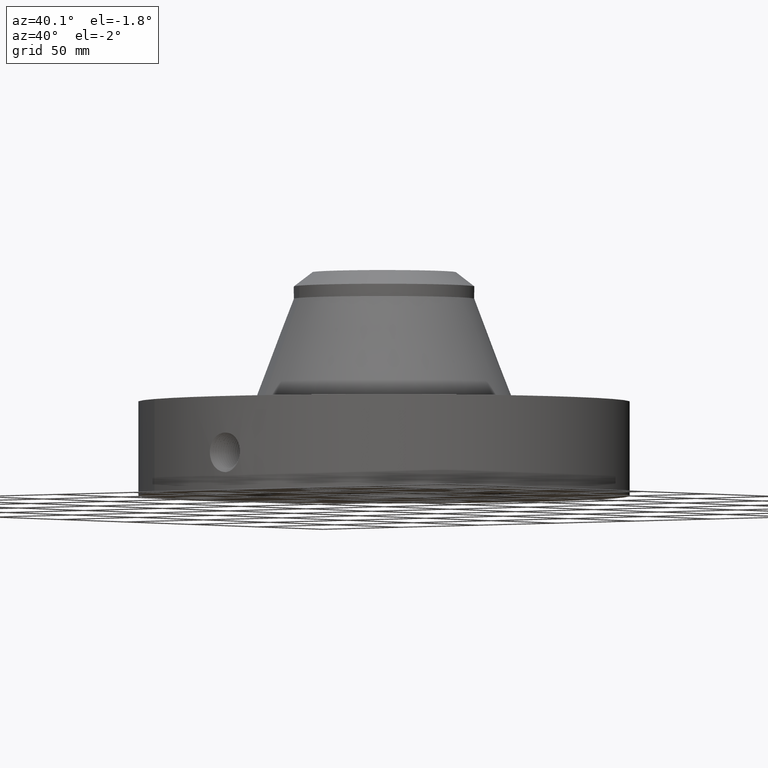
[diagram: clean part render]
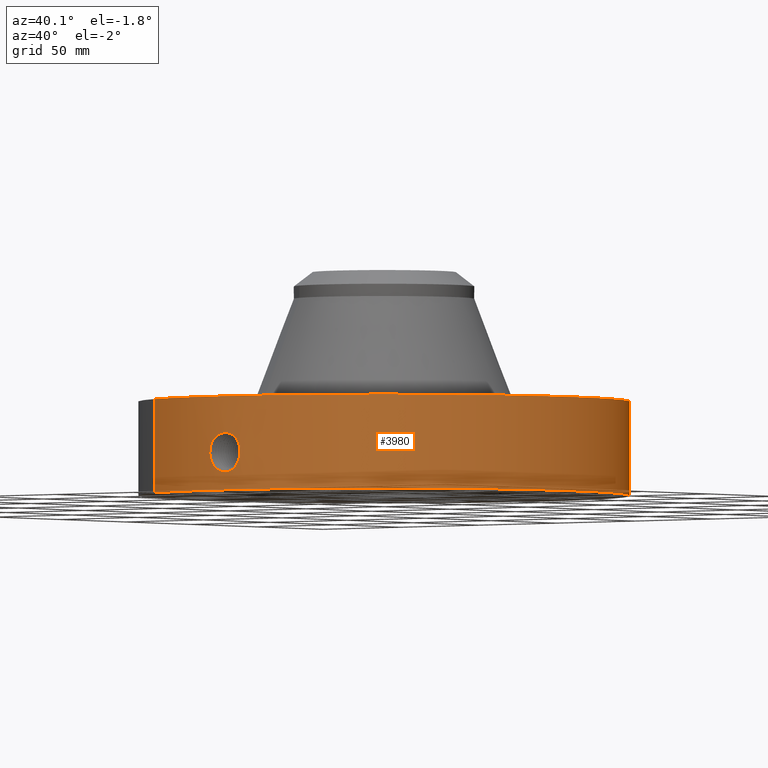
[diagram: same view with one face highlighted and labeled with its STEP entity id]
A machine part, auxiliary view. The second image highlights one B-rep face of the part: STEP entity #3980.
In plain terms, the highlighted cylindrical surface (partial cylindrical patch) has radius 120.65 mm, axis along (0, 0, -1).
Its self-contained STEP definition (entity closure, byte-faithful):
#2918=AXIS2_PLACEMENT_3D('Circle Axis2P3D',#2916,#2917,$) ;
#3735=AXIS2_PLACEMENT_3D('Cylinder Axis2P3D',#3732,#3733,#3734) ;
#3868=AXIS2_PLACEMENT_3D('Circle Axis2P3D',#3866,#3867,$) ;
#2916=CARTESIAN_POINT('Axis2P3D Location',(0.,0.,1.81200000001)) ;
#2920=CARTESIAN_POINT('Vertex',(2.27727130838,4.168517169,1.81200000001)) ;
#2922=CARTESIAN_POINT('Vertex',(-2.27727130838,-4.168517169,1.81200000001)) ;
#3732=CARTESIAN_POINT('Axis2P3D Location',(0.,0.,2.15600000001)) ;
#3741=CARTESIAN_POINT('Vertex',(-2.27727130838,-4.168517169,5.59482469102E-016)) ;
#3743=CARTESIAN_POINT('Vertex',(2.27727130838,4.168517169,5.59482469102E-016)) ;
#3746=CARTESIAN_POINT('Line Origine',(-2.27727130838,-4.168517169,0.906000000004)) ;
#3751=CARTESIAN_POINT('Line Origine',(2.27727130838,4.168517169,0.906000000004)) ;
#3866=CARTESIAN_POINT('Axis2P3D Location',(0.,0.,2.79741234551E-016)) ;
#3878=CARTESIAN_POINT('Control Point',(0.0664453390483,-4.74953524222,1.09781453715)) ;
#3879=CARTESIAN_POINT('Control Point',(0.0447980657734,-4.74983808457,1.10195965719)) ;
#3880=CARTESIAN_POINT('Control Point',(0.0227599615776,-4.7499966182,1.10407372157)) ;
#3881=CARTESIAN_POINT('Control Point',(0.000717080910251,-4.74999994589,1.10411849685)) ;
#3882=CARTESIAN_POINT('Vertex',(0.0664194613202,-4.74953588249,1.09781980318)) ;
#3884=CARTESIAN_POINT('Vertex',(0.000716858948004,-4.74999994592,1.10411850704)) ;
#3888=CARTESIAN_POINT('Control Point',(0.0664193280418,-4.74953560604,1.09781913838)) ;
#3889=CARTESIAN_POINT('Control Point',(0.102754082209,-4.7490274869,1.09201848671)) ;
#3890=CARTESIAN_POINT('Control Point',(0.138115450026,-4.74810200735,1.07977304804)) ;
#3891=CARTESIAN_POINT('Control Point',(0.170475904125,-4.74693985282,1.06208714514)) ;
#3892=CARTESIAN_POINT('Vertex',(0.170475904125,-4.74693985282,1.06208714514)) ;
#3896=CARTESIAN_POINT('Control Point',(0.028971768177,-4.74991164516,0.341041174525)) ;
#3897=CARTESIAN_POINT('Control Point',(0.0747966478629,-4.74963213937,0.346930034083)) ;
#3898=CARTESIAN_POINT('Control Point',(0.119477752277,-4.74880696871,0.36018575059)) ;
#3899=CARTESIAN_POINT('Control Point',(0.161312037588,-4.7475006316,0.380440235202)) ;
#3900=CARTESIAN_POINT('Control Point',(0.245546186262,-4.74402236917,0.438559058388)) ;
#3901=CARTESIAN_POINT('Control Point',(0.306057111128,-4.74027319436,0.519607728819)) ;
#3902=CARTESIAN_POINT('Control Point',(0.330993861189,-4.73849840167,0.569101491807)) ;
#3903=CARTESIAN_POINT('Control Point',(0.358450566593,-4.73646747954,0.657415928029)) ;
#3904=CARTESIAN_POINT('Control Point',(0.360779965022,-4.73627580373,0.748205102413)) ;
#3905=CARTESIAN_POINT('Control Point',(0.35751580004,-4.73652939579,0.785158280102)) ;
#3906=CARTESIAN_POINT('Control Point',(0.339028122289,-4.73793770475,0.875093061235)) ;
#3907=CARTESIAN_POINT('Control Point',(0.295444007566,-4.7409228369,0.956430701633)) ;
#3908=CARTESIAN_POINT('Control Point',(0.260804037755,-4.74309248676,1.00000959849)) ;
#3909=CARTESIAN_POINT('Control Point',(0.218315263935,-4.74522180743,1.03594158219)) ;
#3910=CARTESIAN_POINT('Control Point',(0.170475904125,-4.74693985282,1.06208714514)) ;
#3911=CARTESIAN_POINT('Vertex',(0.028971768177,-4.74991164516,0.341041174525)) ;
#3915=CARTESIAN_POINT('Control Point',(0.028971768177,-4.74991164516,0.341041174525)) ;
#3916=CARTESIAN_POINT('Control Point',(0.019307387026,-4.74997059241,0.34085411941)) ;
#3917=CARTESIAN_POINT('Control Point',(0.00964169660076,-4.75000000556,0.340965378883)) ;
#3918=CARTESIAN_POINT('Control Point',(-2.7287835277E-006,-4.75000000002,0.341374667804)) ;
#3919=CARTESIAN_POINT('Vertex',(-2.72878353485E-006,-4.75000000002,0.341374667804)) ;
#3923=CARTESIAN_POINT('Control Point',(-0.194608877525,-4.7460117346,0.39377859245)) ;
#3924=CARTESIAN_POINT('Control Point',(-0.134839475952,-4.74846256212,0.362003305197)) ;
#3925=CARTESIAN_POINT('Control Point',(-0.0678387415574,-4.74999996105,0.344253485088)) ;
#3926=CARTESIAN_POINT('Control Point',(-2.72878353614E-006,-4.75000000002,0.341374667804)) ;
#3927=CARTESIAN_POINT('Vertex',(-0.194608877525,-4.7460117346,0.39377859245)) ;
#3931=CARTESIAN_POINT('Control Point',(-0.33282812883,-4.73832517213,0.511220579232)) ;
#3932=CARTESIAN_POINT('Control Point',(-0.305365378077,-4.74025420309,0.474559029449)) ;
#3933=CARTESIAN_POINT('Control Point',(-0.272252257538,-4.74236912113,0.442218745034)) ;
#3934=CARTESIAN_POINT('Control Point',(-0.234901855072,-4.74435953238,0.415199602275)) ;
#3935=CARTESIAN_POINT('Control Point',(-0.194608877525,-4.7460117346,0.39377859245)) ;
#3936=CARTESIAN_POINT('Vertex',(-0.33282812883,-4.73832517213,0.511220579232)) ;
#3940=CARTESIAN_POINT('Control Point',(-0.33282812883,-4.73832517213,0.511220579232)) ;
#3941=CARTESIAN_POINT('Control Point',(-0.362191685845,-4.73626262526,0.554057953687)) ;
#3942=CARTESIAN_POINT('Control Point',(-0.384606720549,-4.73444240243,0.601552042798)) ;
#3943=CARTESIAN_POINT('Control Point',(-0.399485381884,-4.73317703025,0.651804324691)) ;
#3944=CARTESIAN_POINT('Control Point',(-0.406764013105,-4.73255143002,0.703249715363)) ;
#3945=CARTESIAN_POINT('Vertex',(-0.406764013105,-4.73255143002,0.703249715362)) ;
#3949=CARTESIAN_POINT('Control Point',(-0.406764013105,-4.73255143002,0.703249715362)) ;
#3950=CARTESIAN_POINT('Control Point',(-0.410937052771,-4.73219275619,0.753590646574)) ;
#3951=CARTESIAN_POINT('Control Point',(-0.406199488379,-4.73259531749,0.804560146849)) ;
#3952=CARTESIAN_POINT('Control Point',(-0.392245399886,-4.73383203852,0.853896276078)) ;
#3953=CARTESIAN_POINT('Control Point',(-0.356408524375,-4.7367675634,0.928104397519)) ;
#3954=CARTESIAN_POINT('Control Point',(-0.303355584484,-4.74037517268,0.988831139632)) ;
#3955=CARTESIAN_POINT('Control Point',(-0.280572121141,-4.74179820805,1.0100544963)) ;
#3956=CARTESIAN_POINT('Control Point',(-0.216669571644,-4.74536022654,1.05871836941)) ;
#3957=CARTESIAN_POINT('Control Point',(-0.143130822753,-4.74818224779,1.08972812287)) ;
#3958=CARTESIAN_POINT('Control Point',(-0.0957568434548,-4.7494038669,1.10169900171)) ;
#3959=CARTESIAN_POINT('Control Point',(-0.0475901789297,-4.75000025916,1.10648726731)) ;
#3960=CARTESIAN_POINT('Control Point',(2.58579355194E-005,-4.74999999995,1.10415298437)) ;
#3961=CARTESIAN_POINT('Vertex',(2.58579355142E-005,-4.74999999995,1.10415298437)) ;
#3965=CARTESIAN_POINT('Control Point',(0.000716858936297,-4.74999994592,1.10411850702)) ;
#3966=CARTESIAN_POINT('Control Point',(0.000371381580734,-4.74999999807,1.10413604575)) ;
#3967=CARTESIAN_POINT('Control Point',(2.58579432108E-005,-4.74999999995,1.10415298437)) ;
#2917=DIRECTION('Axis2P3D Direction',(0.,0.,-0.0393700787402)) ;
#3733=DIRECTION('Axis2P3D Direction',(0.,0.,-0.0393700787402)) ;
#3734=DIRECTION('Axis2P3D XDirection',(0.0188750212049,0.0345504945626,0.)) ;
#3747=DIRECTION('Vector Direction',(0.,0.,-0.0393700787402)) ;
#3752=DIRECTION('Vector Direction',(0.,0.,-0.0393700787402)) ;
#3867=DIRECTION('Axis2P3D Direction',(0.,0.,-0.0393700787402)) ;
#3748=VECTOR('Line Direction',#3747,0.0393700787402) ;
#3753=VECTOR('Line Direction',#3752,0.0393700787402) ;
#3872=ORIENTED_EDGE('',*,*,#3870,.F.) ;
#3873=ORIENTED_EDGE('',*,*,#3755,.T.) ;
#3874=ORIENTED_EDGE('',*,*,#2924,.T.) ;
#3875=ORIENTED_EDGE('',*,*,#3750,.F.) ;
#3970=ORIENTED_EDGE('',*,*,#3886,.F.) ;
#3971=ORIENTED_EDGE('',*,*,#3894,.T.) ;
#3972=ORIENTED_EDGE('',*,*,#3913,.F.) ;
#3973=ORIENTED_EDGE('',*,*,#3921,.T.) ;
#3974=ORIENTED_EDGE('',*,*,#3929,.F.) ;
#3975=ORIENTED_EDGE('',*,*,#3938,.F.) ;
#3976=ORIENTED_EDGE('',*,*,#3947,.T.) ;
#3977=ORIENTED_EDGE('',*,*,#3963,.T.) ;
#3978=ORIENTED_EDGE('',*,*,#3968,.F.) ;
#3979=FACE_BOUND('',#3969,.T.) ;
#3980=ADVANCED_FACE('PartBody',(#3876,#3979),#3736,.T.) ;
#3877=B_SPLINE_CURVE_WITH_KNOTS('',3,(#3878,#3879,#3880,#3881),.UNSPECIFIED.,.F.,.U.,(4,4),(4.07660350192,6.5220647353),.UNSPECIFIED.) ;
#3887=B_SPLINE_CURVE_WITH_KNOTS('',3,(#3888,#3889,#3890,#3891),.UNSPECIFIED.,.F.,.U.,(4,4),(0.,4.13424609307),.UNSPECIFIED.) ;
#3895=B_SPLINE_CURVE_WITH_KNOTS('',5,(#3896,#3897,#3898,#3899,#3900,#3901,#3902,#3903,#3904,#3905,#3906,#3907,#3908,#3909,#3910),.UNSPECIFIED.,.F.,.U.,(6,3,3,3,6),(0.,8.03013437297,17.930212952,24.7841547282,34.9704398471),.UNSPECIFIED.) ;
#3914=B_SPLINE_CURVE_WITH_KNOTS('',3,(#3915,#3916,#3917,#3918),.UNSPECIFIED.,.F.,.U.,(4,4),(0.,1.00795522095),.UNSPECIFIED.) ;
#3922=B_SPLINE_CURVE_WITH_KNOTS('',3,(#3923,#3924,#3925,#3926),.UNSPECIFIED.,.F.,.U.,(4,4),(0.,7.08965652053),.UNSPECIFIED.) ;
#3930=B_SPLINE_CURVE_WITH_KNOTS('',4,(#3931,#3932,#3933,#3934,#3935),.UNSPECIFIED.,.F.,.U.,(5,5),(0.,6.37256664394),.UNSPECIFIED.) ;
#3939=B_SPLINE_CURVE_WITH_KNOTS('',4,(#3940,#3941,#3942,#3943,#3944),.UNSPECIFIED.,.F.,.U.,(5,5),(0.,7.22448170918),.UNSPECIFIED.) ;
#3948=B_SPLINE_CURVE_WITH_KNOTS('',5,(#3949,#3950,#3951,#3952,#3953,#3954,#3955,#3956,#3957,#3958,#3959,#3960),.UNSPECIFIED.,.F.,.U.,(6,3,3,6),(0.,8.77965354812,14.3423465687,23.2427694471),.UNSPECIFIED.) ;
#3964=B_SPLINE_CURVE_WITH_KNOTS('',2,(#3965,#3966,#3967),.UNSPECIFIED.,.F.,.U.,(3,3),(1.10272793676,1.12856214638),.UNSPECIFIED.) ;
#2919=CIRCLE('generated circle',#2918,4.75000000002) ;
#3869=CIRCLE('generated circle',#3868,4.75000000002) ;
#3736=CYLINDRICAL_SURFACE('generated cylinder',#3735,4.75000000002) ;
#2924=EDGE_CURVE('',#2921,#2923,#2919,.T.) ;
#3750=EDGE_CURVE('',#3742,#2923,#3749,.F.) ;
#3755=EDGE_CURVE('',#3744,#2921,#3754,.F.) ;
#3870=EDGE_CURVE('',#3744,#3742,#3869,.T.) ;
#3886=EDGE_CURVE('',#3883,#3885,#3877,.T.) ;
#3894=EDGE_CURVE('',#3883,#3893,#3887,.T.) ;
#3913=EDGE_CURVE('',#3912,#3893,#3895,.T.) ;
#3921=EDGE_CURVE('',#3912,#3920,#3914,.T.) ;
#3929=EDGE_CURVE('',#3928,#3920,#3922,.T.) ;
#3938=EDGE_CURVE('',#3937,#3928,#3930,.T.) ;
#3947=EDGE_CURVE('',#3937,#3946,#3939,.T.) ;
#3963=EDGE_CURVE('',#3946,#3962,#3948,.T.) ;
#3968=EDGE_CURVE('',#3885,#3962,#3964,.T.) ;
#3871=EDGE_LOOP('',(#3872,#3873,#3874,#3875)) ;
#3969=EDGE_LOOP('',(#3970,#3971,#3972,#3973,#3974,#3975,#3976,#3977,#3978)) ;
#3876=FACE_OUTER_BOUND('',#3871,.T.) ;
#3749=LINE('Line',#3746,#3748) ;
#3754=LINE('Line',#3751,#3753) ;
#2921=VERTEX_POINT('',#2920) ;
#2923=VERTEX_POINT('',#2922) ;
#3742=VERTEX_POINT('',#3741) ;
#3744=VERTEX_POINT('',#3743) ;
#3883=VERTEX_POINT('',#3882) ;
#3885=VERTEX_POINT('',#3884) ;
#3893=VERTEX_POINT('',#3892) ;
#3912=VERTEX_POINT('',#3911) ;
#3920=VERTEX_POINT('',#3919) ;
#3928=VERTEX_POINT('',#3927) ;
#3937=VERTEX_POINT('',#3936) ;
#3946=VERTEX_POINT('',#3945) ;
#3962=VERTEX_POINT('',#3961) ;